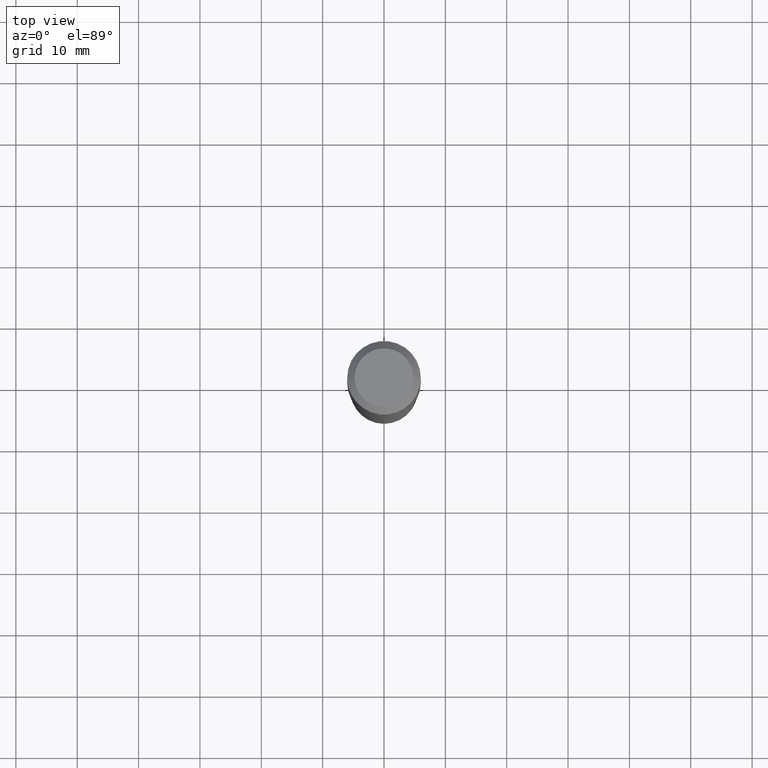
[diagram: clean part render]
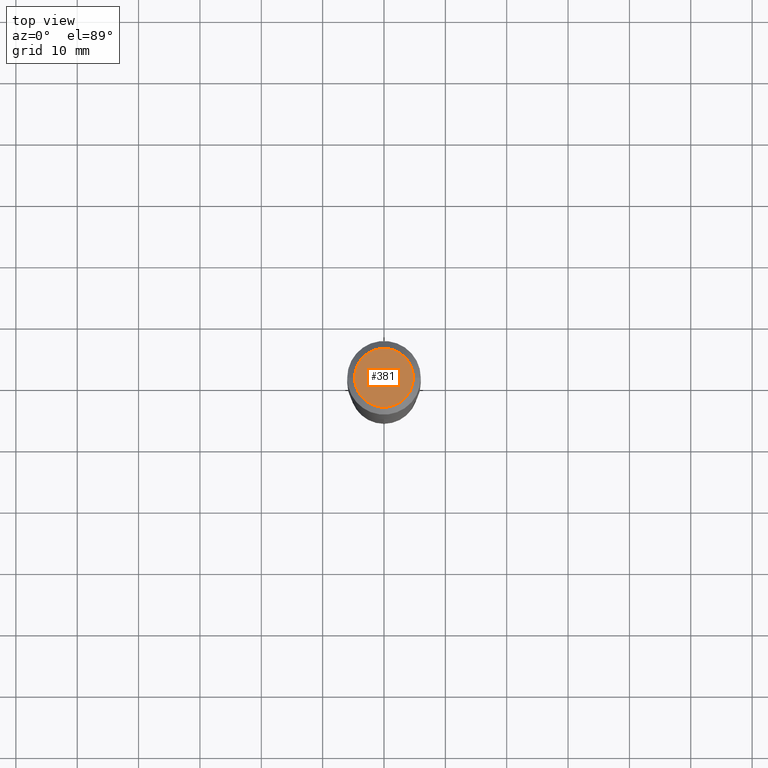
[diagram: same view with one face highlighted and labeled with its STEP entity id]
A machine part, top view. The second image highlights one B-rep face of the part: STEP entity #381.
In plain terms, the highlighted planar face has unit normal (0, -0, -1).
Its self-contained STEP definition (entity closure, byte-faithful):
#53 = CARTESIAN_POINT ( 'NONE',  ( -4.713871149261273121E-47, 6.730158695841826722E-33, 1.927594061857931128E-18 ) ) ;
#90 = FACE_OUTER_BOUND ( 'NONE', #354, .T. ) ;
#99 = DIRECTION ( 'NONE',  ( 2.438088387897960049E-29, -3.491481338843145188E-15, -1.000000000000000000 ) ) ;
#118 = EDGE_CURVE ( 'NONE', #213, #325, #259, .T. ) ;
#167 = PLANE ( 'NONE',  #368 ) ;
#181 = DIRECTION ( 'NONE',  ( -2.445468806185136597E-29, 3.491481338843145583E-15, 1.000000000000000000 ) ) ;
#185 = DIRECTION ( 'NONE',  ( -2.445468806185136597E-29, 3.491481338843145583E-15, 1.000000000000000000 ) ) ;
#213 = VERTEX_POINT ( 'NONE', #374 ) ;
#217 = EDGE_CURVE ( 'NONE', #325, #213, #411, .T. ) ;
#220 = AXIS2_PLACEMENT_3D ( 'NONE', #303, #185, #451 ) ;
#259 = CIRCLE ( 'NONE', #220, 0.1889600000000000168 ) ;
#287 = DIRECTION ( 'NONE',  ( 1.000000000000000000, -6.982962677686266711E-15, 4.876185090822587894E-29 ) ) ;
#303 = CARTESIAN_POINT ( 'NONE',  ( -9.427742298522546243E-47, 1.346031739168365344E-32, 3.855188123715862256E-18 ) ) ;
#325 = VERTEX_POINT ( 'NONE', #397 ) ;
#354 = EDGE_LOOP ( 'NONE', ( #438, #430 ) ) ;
#368 = AXIS2_PLACEMENT_3D ( 'NONE', #53, #99, #390 ) ;
#374 = CARTESIAN_POINT ( 'NONE',  ( 0.1889600000000000168, -1.540873453589747738E-15, 3.855188123725863225E-18 ) ) ;
#381 = ADVANCED_FACE ( 'NONE', ( #90 ), #167, .F. ) ;
#390 = DIRECTION ( 'NONE',  ( -1.000000000000000000, 6.982962677686265922E-15, -4.876176775795935793E-29 ) ) ;
#397 = CARTESIAN_POINT ( 'NONE',  ( -0.1889600000000000168, 1.401969416799070942E-15, 3.855188123706346622E-18 ) ) ;
#409 = CARTESIAN_POINT ( 'NONE',  ( -9.427742298522546243E-47, 1.346031739168365344E-32, 3.855188123715862256E-18 ) ) ;
#411 = CIRCLE ( 'NONE', #439, 0.1889600000000000168 ) ;
#430 = ORIENTED_EDGE ( 'NONE', *, *, #118, .T. ) ;
#438 = ORIENTED_EDGE ( 'NONE', *, *, #217, .T. ) ;
#439 = AXIS2_PLACEMENT_3D ( 'NONE', #409, #181, #287 ) ;
#451 = DIRECTION ( 'NONE',  ( 1.000000000000000000, -6.982962677686266711E-15, 4.876185090822587894E-29 ) ) ;